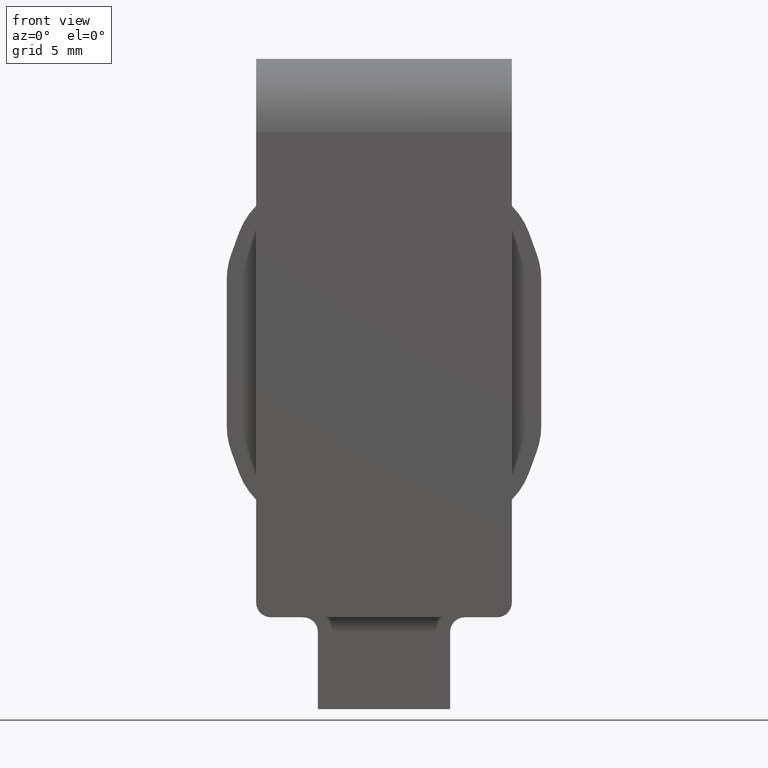
[diagram: clean part render]
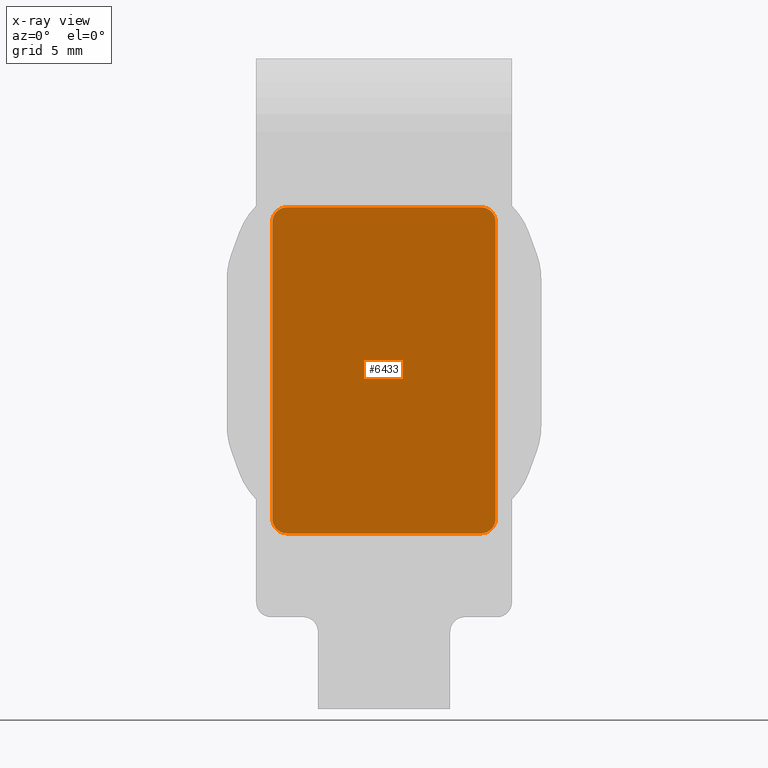
[diagram: x-ray — body ghosted, one internal face saturated and labeled with its STEP entity id]
A machine part, front view, then the same camera in x-ray: the body is ghosted and one INTERNAL B-rep face — a face not visible from any outside direction — is saturated and labeled: STEP entity #6433.
In plain terms, the highlighted planar face has unit normal (-0, -1, -0).
Its self-contained STEP definition (entity closure, byte-faithful):
#19 = CARTESIAN_POINT ( 'NONE',  ( -6.599999999999999645, 3.999999999999998224, 5.700000000000002842 ) ) ;
#359 = VERTEX_POINT ( 'NONE', #16067 ) ;
#495 = ORIENTED_EDGE ( 'NONE', *, *, #6897, .F. ) ;
#614 = DIRECTION ( 'NONE',  ( -3.567171097801156054E-32, -1.000000000000000000, -1.562813942321448017E-16 ) ) ;
#661 = VERTEX_POINT ( 'NONE', #12780 ) ;
#728 = PLANE ( 'NONE',  #9507 ) ;
#973 = DIRECTION ( 'NONE',  ( 0.000000000000000000, 0.000000000000000000, -1.000000000000000000 ) ) ;
#1171 = CARTESIAN_POINT ( 'NONE',  ( 7.600000000000000533, 3.999999999999998224, 5.700000000000001066 ) ) ;
#2688 = DIRECTION ( 'NONE',  ( -8.673617379884035472E-16, 0.000000000000000000, -1.000000000000000000 ) ) ;
#2835 = EDGE_CURVE ( 'NONE', #359, #3678, #11911, .T. ) ;
#2927 = VERTEX_POINT ( 'NONE', #11594 ) ;
#2956 = CIRCLE ( 'NONE', #6314, 1.000000000000000888 ) ;
#3010 = EDGE_CURVE ( 'NONE', #359, #6628, #10699, .T. ) ;
#3105 = DIRECTION ( 'NONE',  ( 3.567171097801156054E-32, 1.000000000000000000, 1.562813942321448017E-16 ) ) ;
#3448 = ORIENTED_EDGE ( 'NONE', *, *, #13798, .T. ) ;
#3563 = LINE ( 'NONE', #15594, #14282 ) ;
#3678 = VERTEX_POINT ( 'NONE', #8239 ) ;
#3786 = CIRCLE ( 'NONE', #7223, 1.000000000000000888 ) ;
#3874 = CARTESIAN_POINT ( 'NONE',  ( -6.599999999999997868, 3.999999999999994671, 27.90000000000000213 ) ) ;
#3898 = EDGE_CURVE ( 'NONE', #3920, #3678, #2956, .T. ) ;
#3920 = VERTEX_POINT ( 'NONE', #3938 ) ;
#3938 = CARTESIAN_POINT ( 'NONE',  ( 6.600000000000005862, 3.999999999999994671, 27.89999999999999858 ) ) ;
#4270 = LINE ( 'NONE', #4377, #13415 ) ;
#4345 = DIRECTION ( 'NONE',  ( 1.040834085586084257E-14, 0.000000000000000000, -1.000000000000000000 ) ) ;
#4377 = CARTESIAN_POINT ( 'NONE',  ( -7.599999999999998757, 3.999999999999994671, 27.90000000000000213 ) ) ;
#6314 = AXIS2_PLACEMENT_3D ( 'NONE', #11389, #16301, #6350 ) ;
#6350 = DIRECTION ( 'NONE',  ( 0.000000000000000000, 0.000000000000000000, -1.000000000000000000 ) ) ;
#6433 = ADVANCED_FACE ( 'NONE', ( #10441 ), #728, .F. ) ;
#6628 = VERTEX_POINT ( 'NONE', #10223 ) ;
#6740 = ORIENTED_EDGE ( 'NONE', *, *, #14818, .F. ) ;
#6897 = EDGE_CURVE ( 'NONE', #661, #2927, #4270, .T. ) ;
#7223 = AXIS2_PLACEMENT_3D ( 'NONE', #16191, #14807, #973 ) ;
#7737 = DIRECTION ( 'NONE',  ( 3.567171097801156054E-32, 1.000000000000000000, 1.562813942321448017E-16 ) ) ;
#8239 = CARTESIAN_POINT ( 'NONE',  ( 7.600000000000005862, 3.999999999999994671, 26.89999999999999858 ) ) ;
#8243 = EDGE_LOOP ( 'NONE', ( #11045, #8786, #8441, #15551, #495, #3448, #6740, #10722 ) ) ;
#8441 = ORIENTED_EDGE ( 'NONE', *, *, #11591, .F. ) ;
#8498 = AXIS2_PLACEMENT_3D ( 'NONE', #11507, #7737, #2688 ) ;
#8717 = DIRECTION ( 'NONE',  ( 2.344220913482172149E-16, -1.562813942321448017E-16, 1.000000000000000000 ) ) ;
#8786 = ORIENTED_EDGE ( 'NONE', *, *, #3010, .T. ) ;
#9442 = DIRECTION ( 'NONE',  ( 0.000000000000000000, 1.562813942321448017E-16, -1.000000000000000000 ) ) ;
#9507 = AXIS2_PLACEMENT_3D ( 'NONE', #13403, #614, #13173 ) ;
#10223 = CARTESIAN_POINT ( 'NONE',  ( 6.599999999999997868, 3.999999999999998224, 5.700000000000001066 ) ) ;
#10441 = FACE_OUTER_BOUND ( 'NONE', #8243, .T. ) ;
#10544 = LINE ( 'NONE', #14342, #11144 ) ;
#10699 = CIRCLE ( 'NONE', #11185, 1.000000000000000000 ) ;
#10722 = ORIENTED_EDGE ( 'NONE', *, *, #3898, .T. ) ;
#10914 = CIRCLE ( 'NONE', #8498, 1.000000000000000000 ) ;
#11045 = ORIENTED_EDGE ( 'NONE', *, *, #2835, .F. ) ;
#11144 = VECTOR ( 'NONE', #15443, 1000.000000000000000 ) ;
#11185 = AXIS2_PLACEMENT_3D ( 'NONE', #15884, #3105, #4345 ) ;
#11389 = CARTESIAN_POINT ( 'NONE',  ( 6.600000000000005862, 3.999999999999995559, 26.89999999999999858 ) ) ;
#11507 = CARTESIAN_POINT ( 'NONE',  ( -6.599999999999998757, 3.999999999999999112, 6.700000000000004619 ) ) ;
#11523 = VECTOR ( 'NONE', #8717, 1000.000000000000000 ) ;
#11591 = EDGE_CURVE ( 'NONE', #14619, #6628, #10544, .T. ) ;
#11594 = CARTESIAN_POINT ( 'NONE',  ( -7.599999999999998757, 3.999999999999998224, 6.700000000000004619 ) ) ;
#11911 = LINE ( 'NONE', #1171, #11523 ) ;
#11957 = DIRECTION ( 'NONE',  ( -1.000000000000000000, 0.000000000000000000, 2.282530889443166529E-16 ) ) ;
#12780 = CARTESIAN_POINT ( 'NONE',  ( -7.599999999999998757, 3.999999999999994671, 26.89999999999999858 ) ) ;
#13173 = DIRECTION ( 'NONE',  ( 0.000000000000000000, 1.562813942321448017E-16, -1.000000000000000000 ) ) ;
#13403 = CARTESIAN_POINT ( 'NONE',  ( 1.605226994010520279E-31, 4.000000000000000000, 6.286915214398285185E-16 ) ) ;
#13415 = VECTOR ( 'NONE', #9442, 1000.000000000000000 ) ;
#13798 = EDGE_CURVE ( 'NONE', #661, #14305, #3786, .T. ) ;
#14282 = VECTOR ( 'NONE', #11957, 1000.000000000000000 ) ;
#14305 = VERTEX_POINT ( 'NONE', #3874 ) ;
#14342 = CARTESIAN_POINT ( 'NONE',  ( -7.599999999999998757, 3.999999999999998224, 5.700000000000002842 ) ) ;
#14619 = VERTEX_POINT ( 'NONE', #19 ) ;
#14807 = DIRECTION ( 'NONE',  ( 3.567171097801156054E-32, 1.000000000000000000, 1.562813942321448017E-16 ) ) ;
#14818 = EDGE_CURVE ( 'NONE', #3920, #14305, #3563, .T. ) ;
#14980 = EDGE_CURVE ( 'NONE', #14619, #2927, #10914, .T. ) ;
#15443 = DIRECTION ( 'NONE',  ( 1.000000000000000000, 0.000000000000000000, -1.141265444721583757E-16 ) ) ;
#15551 = ORIENTED_EDGE ( 'NONE', *, *, #14980, .T. ) ;
#15594 = CARTESIAN_POINT ( 'NONE',  ( 7.600000000000005862, 3.999999999999994671, 27.89999999999999858 ) ) ;
#15884 = CARTESIAN_POINT ( 'NONE',  ( 6.600000000000001421, 3.999999999999999112, 6.700000000000001066 ) ) ;
#16067 = CARTESIAN_POINT ( 'NONE',  ( 7.600000000000000533, 3.999999999999998224, 6.700000000000001066 ) ) ;
#16191 = CARTESIAN_POINT ( 'NONE',  ( -6.599999999999997868, 3.999999999999995559, 26.89999999999999858 ) ) ;
#16301 = DIRECTION ( 'NONE',  ( 3.567171097801156054E-32, 1.000000000000000000, 1.562813942321448017E-16 ) ) ;